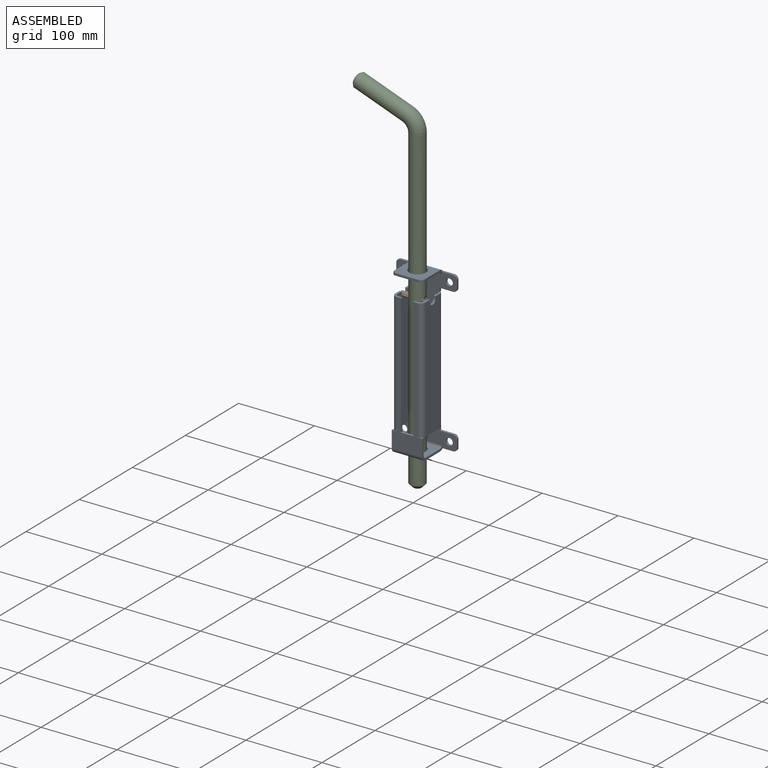
[diagram: assembled view]
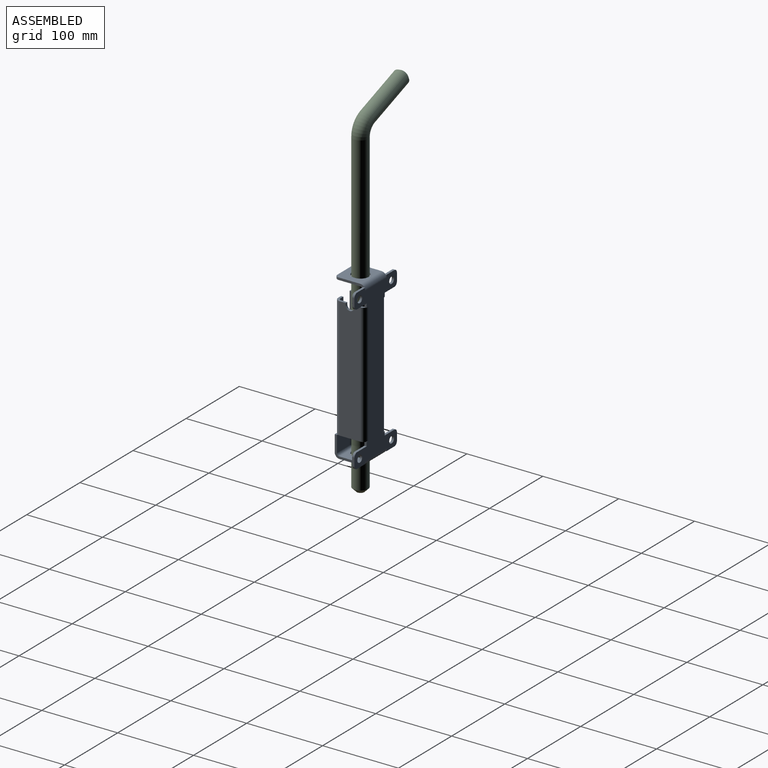
[diagram: assembled view, second angle]
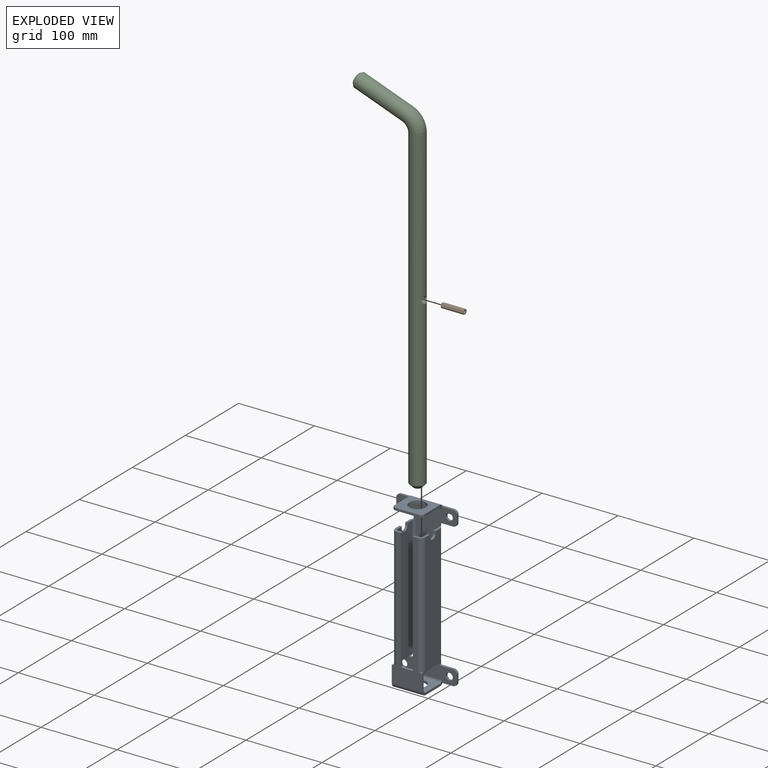
[diagram: exploded view]
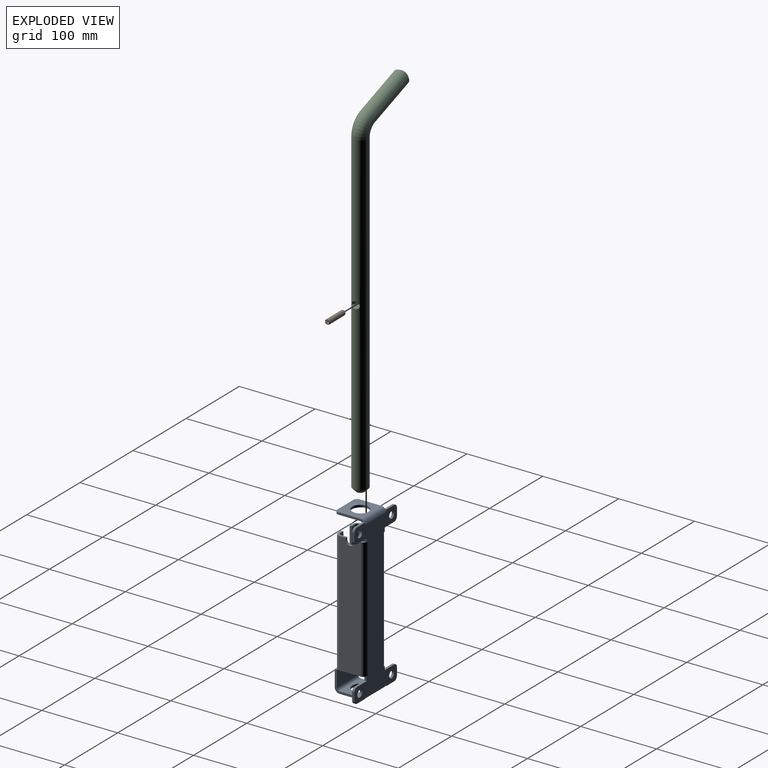
[diagram: exploded view, second angle]
ASSEMBLY  parts=3 mates=2
PART A: 118 faces, bbox 80.1x40.1x216.1 mm
  f0: plane 3.4x0.98mm, normal (0,0,-1), area 1.1mm2, adj f22,f28,f116
  f1: plane 3.4x0.98mm, normal (0,0,-1), area 1.1mm2, adj f15,f28,f94
  f2: plane 3.4x0.98mm, normal (-1,0,0), area 1.1mm2, adj f10,f28,f72
  f3: plane 3.4x0.98mm, normal (-1,0,0), area 1.1mm2, adj f19,f28,f48
  f4: plane 3.4x0.98mm, normal (0,0,1), area 1.1mm2, adj f14,f28,f94
  f5: plane 3.4x0.98mm, normal (0,0,1), area 1.1mm2, adj f27,f28,f116
  f6: plane 3.4x0.98mm, normal (1,0,0), area 1.1mm2, adj f18,f28,f48
  f7: plane 3.4x0.98mm, normal (1,0,0), area 1.1mm2, adj f11,f28,f72
  f8: plane 18x3mm, normal (0,0,1), area 54mm2, adj f27,f28,f29,f37
  f9: plane 10x3mm, normal (1,0,0), area 30mm2, adj f28,f29,f34,f37
  f10: plane 15x3mm, normal (0,0,-1), area 45mm2, adj f2,f28,f29,f34,f50
  f11: plane 15x3mm, normal (0,0,-1), area 45mm2, adj f7,f28,f29,f30,f71
  f12: plane 10x3mm, normal (-1,0,0), area 30mm2, adj f28,f29,f30,f32
  f13: plane 18x3mm, normal (0,0,1), area 54mm2, adj f14,f28,f29,f32
  f14: plane 5x3mm, normal (-1,0,0), area 15mm2, adj f4,f13,f28,f29,f74
  f15: plane 5x3mm, normal (-1,0,0), area 15mm2, adj f1,f16,f28,f29,f93
  f16: plane 18x3mm, normal (0,0,-1), area 54mm2, adj f15,f28,f29,f31
  f17: plane 10x3mm, normal (-1,0,0), area 30mm2, adj f28,f29,f31,f35
  f18: plane 15x3mm, normal (0,0,1), area 45mm2, adj f6,f28,f29,f35,f38
  f19: plane 15x3mm, normal (0,0,1), area 45mm2, adj f3,f28,f29,f36,f47
  f20: plane 10x3mm, normal (1,0,0), area 30mm2, adj f28,f29,f33,f36
  f21: plane 18x3mm, normal (0,0,-1), area 54mm2, adj f22,f28,f29,f33
  f22: plane 5x3mm, normal (1,0,0), area 15mm2, adj f0,f21,f28,f29,f96
  f23: cylinder r=4.5mm len=9mm, axis (0,-1,0), area 84.8mm2, adj f28,f29
  f24: cylinder r=4.5mm len=9mm, axis (0,-1,0), area 84.8mm2, adj f28,f29
  f25: cylinder r=4.5mm len=9mm, axis (0,-1,0), area 84.8mm2, adj f28,f29
  f26: cylinder r=4.5mm len=9mm, axis (0,-1,0), area 84.8mm2, adj f28,f29
  f27: plane 5x3mm, normal (1,0,0), area 15mm2, adj f5,f8,f28,f29,f115
  f28: plane 210x80mm, normal (0,1,0), area 7322.6mm2, adj f0,f1,f2,f3,f4,f5,f6,f7
  f29: plane 210x80mm, normal (0,-1,0), area 7322.6mm2, adj f8,f9,f10,f11,f12,f13,f14,f15
  f30: cylinder r=5mm len=5mm, axis (0,1,0), area 23.6mm2, adj f11,f12,f28,f29
  f31: cylinder r=5mm len=5mm, axis (0,1,0), area 23.6mm2, adj f16,f17,f28,f29
  f32: cylinder r=5mm len=5mm, axis (0,1,0), area 23.6mm2, adj f12,f13,f28,f29
  f33: cylinder r=5mm len=5mm, axis (0,1,0), area 23.6mm2, adj f20,f21,f28,f29
  f34: cylinder r=5mm len=5mm, axis (0,-1,0), area 23.6mm2, adj f9,f10,f28,f29
  f35: cylinder r=5mm len=5mm, axis (0,1,0), area 23.6mm2, adj f17,f18,f28,f29
  f36: cylinder r=5mm len=5mm, axis (0,-1,0), area 23.6mm2, adj f19,f20,f28,f29
  f37: cylinder r=5mm len=5mm, axis (0,1,0), area 23.6mm2, adj f8,f9,f28,f29
  f38: plane 6.4x5.42mm, normal (-1,0,0), area 14mm2, adj f18,f29,f42,f48,f49
  f39: plane 30x3mm, normal (0,-1,0), area 90mm2, adj f43,f44,f45,f46
  f40: plane 28.6x3mm, normal (1,0,0), area 85.8mm2, adj f43,f44,f46,f47
  f41: cylinder r=11mm len=22mm, axis (0,0,1), area 207.3mm2, adj f43,f44
  f42: plane 28.6x3mm, normal (-1,0,0), area 85.8mm2, adj f38,f43,f44,f45
  f43: plane 40x33.6mm, normal (0,0,1), area 953.1mm2, adj f39,f40,f41,f42,f45,f46,f48
  f44: plane 40x33.6mm, normal (0,0,-1), area 953.1mm2, adj f39,f40,f41,f42,f45,f46,f49
  f45: cylinder r=5mm len=5mm, axis (0,0,-1), area 23.6mm2, adj f39,f42,f43,f44
  f46: cylinder r=5mm len=5mm, axis (0,0,-1), area 23.6mm2, adj f39,f40,f43,f44
  f47: plane 6.4x5.42mm, normal (1,0,0), area 14mm2, adj f19,f29,f40,f48,f49
  f48: cylinder r=6.4mm len=40mm, axis (1,0,0), area 402.1mm2, adj f3,f6,f28,f38,f43,f47
  f49: cylinder r=3.4mm len=40mm, axis (1,0,0), area 213.6mm2, adj f29,f38,f44,f47
  f50: plane 6.4x5.42mm, normal (1,0,0), area 14mm2, adj f10,f29,f53,f72,f73
  f51: plane 27.2x3mm, normal (-1,0,0), area 81.6mm2, adj f54,f55,f67,f71
  f52: cylinder r=11mm len=22mm, axis (0,0,-1), area 207.3mm2, adj f54,f55
  f53: plane 27.2x3mm, normal (1,0,0), area 81.6mm2, adj f50,f54,f55,f68
  f54: plane 40x27.2mm, normal (0,0,-1), area 707.9mm2, adj f51,f52,f53,f69,f72
  f55: plane 40x27.2mm, normal (0,0,1), area 707.9mm2, adj f51,f52,f53,f70,f73
  f56: plane 3x0.05mm, normal (-1,0,0), area 0.2mm2, adj f60,f61,f65,f66
  f57: plane 3x0.05mm, normal (1,0,0), area 0.2mm2, adj f59,f60,f65,f66
  f58: offset ~3.1x3.1mm, area 9mm2, adj f59,f64,f65,f66
  f59: offset ~9.1x3.1mm, area 27mm2, adj f57,f58,f65,f66
  f60: bspline ~16x3mm, area 48mm2, adj f56,f57,f65,f66
  f61: offset ~9.1x3.1mm, area 27mm2, adj f56,f62,f65,f66
  f62: offset ~3.1x3.1mm, area 9mm2, adj f61,f63,f65,f66
  f63: plane 21.54x3mm, normal (-1,0,0), area 64.6mm2, adj f62,f65,f66,f67
  f64: plane 21.54x3mm, normal (1,0,0), area 64.6mm2, adj f58,f65,f66,f68
  f65: plane 40x21.59mm, normal (0,-1,0), area 862.4mm2, adj f56,f57,f58,f59,f60,f61,f62,f63
  f66: plane 40x21.59mm, normal (0,1,0), area 862.4mm2, adj f56,f57,f58,f59,f60,f61,f62,f63
  f67: plane 6.4x6.4mm, normal (-1,0,0), area 23.1mm2, adj f51,f63,f69,f70
  f68: plane 6.4x6.4mm, normal (1,0,0), area 23.1mm2, adj f53,f64,f69,f70
  f69: cylinder r=6.4mm len=40mm, axis (-1,0,0), area 402.1mm2, adj f54,f65,f67,f68
  f70: cylinder r=3.4mm len=40mm, axis (-1,0,0), area 213.6mm2, adj f55,f66,f67,f68
  f71: plane 6.4x5.42mm, normal (-1,0,0), area 14mm2, adj f11,f29,f51,f72,f73
  f72: cylinder r=6.4mm len=40mm, axis (1,0,0), area 402.1mm2, adj f2,f7,f28,f50,f54,f71
  f73: cylinder r=3.4mm len=40mm, axis (1,0,0), area 213.6mm2, adj f29,f50,f55,f71
  f74: plane 6.4x5.42mm, normal (0,0,-1), area 14mm2, adj f14,f29,f79,f94,f95
  f75: plane 3x0.05mm, normal (0,-1,0), area 0.1mm2, adj f79,f82,f83,f90
  f76: cylinder r=5.5mm len=11mm, axis (-1,0,0), area 51.8mm2, adj f77,f81,f82,f83
  f77: plane 3x2.5mm, normal (0,-1,0), area 7.5mm2, adj f76,f78,f82,f83
  f78: plane 8.1x3mm, normal (0,0,1), area 24.3mm2, adj f77,f82,f83,f93
  f79: plane 27.2x3mm, normal (0,0,-1), area 81.6mm2, adj f74,f75,f82,f83
  f80: plane 8.1x3mm, normal (0,0,1), area 24.3mm2, adj f81,f82,f83,f89
  f81: plane 3x2.5mm, normal (0,1,0), area 7.5mm2, adj f76,f80,f82,f83
  f82: plane 160x27.2mm, normal (-1,0,0), area 4277mm2, adj f75,f76,f77,f78,f79,f80,f81,f91
  f83: plane 160x27.2mm, normal (1,0,0), area 4277mm2, adj f75,f76,f77,f78,f79,f80,f81,f92
  f84: plane 159.95x3mm, normal (1,0,0), area 479.8mm2, adj f85,f86,f87,f88
  f85: plane 5.6x3mm, normal (0,0,1), area 16.8mm2, adj f84,f87,f88,f89
  f86: offset ~9.1x3.1mm, area 16.8mm2, adj f84,f87,f88,f90
  f87: plane 159.95x5.6mm, normal (0,-1,0), area 895.7mm2, adj f84,f85,f86,f91
  f88: plane 159.95x5.6mm, normal (0,1,0), area 895.7mm2, adj f84,f85,f86,f92
  f89: plane 6.4x6.4mm, normal (0,0,1), area 23.1mm2, adj f80,f85,f91,f92
  f90: plane 6.4x6.4mm, normal (0,0,-1), area 23.1mm2, adj f75,f86,f91,f92
  f91: cylinder r=6.4mm len=159.95mm, axis (0,0,1), area 1608mm2, adj f82,f87,f89,f90
  f92: cylinder r=3.4mm len=159.95mm, axis (0,0,1), area 854.2mm2, adj f83,f88,f89,f90
  f93: plane 6.4x5.42mm, normal (0,0,1), area 14mm2, adj f15,f29,f78,f94,f95
  f94: cylinder r=6.4mm len=160mm, axis (0,0,1), area 1608.5mm2, adj f1,f4,f28,f74,f82,f93
  f95: cylinder r=3.4mm len=160mm, axis (0,0,1), area 854.5mm2, adj f29,f74,f83,f93
  f96: plane 6.4x5.42mm, normal (0,0,1), area 14mm2, adj f22,f29,f102,f116,f117
  f97: cylinder r=5.5mm len=11mm, axis (1,0,0), area 51.8mm2, adj f98,f103,f104,f105
  f98: plane 3x2.5mm, normal (0,1,0), area 7.5mm2, adj f97,f99,f104,f105
  f99: plane 8.1x3mm, normal (0,0,1), area 24.3mm2, adj f98,f104,f105,f112
  f100: plane 3x0.05mm, normal (0,-1,0), area 0.1mm2, adj f101,f104,f105,f111
  f101: plane 27.2x3mm, normal (0,0,-1), area 81.6mm2, adj f100,f104,f105,f115
  f102: plane 8.1x3mm, normal (0,0,1), area 24.3mm2, adj f96,f103,f104,f105
  f103: plane 3x2.5mm, normal (0,-1,0), area 7.5mm2, adj f97,f102,f104,f105
  f104: plane 160x27.2mm, normal (1,0,0), area 4277mm2, adj f97,f98,f99,f100,f101,f102,f103,f113
  f105: plane 160x27.2mm, normal (-1,0,0), area 4277mm2, adj f97,f98,f99,f100,f101,f102,f103,f114
  f106: plane 159.95x3mm, normal (-1,0,0), area 479.9mm2, adj f107,f108,f109,f110
  f107: offset ~9.1x3.1mm, area 16.8mm2, adj f106,f109,f110,f111
  f108: plane 5.6x3mm, normal (0,0,1), area 16.8mm2, adj f106,f109,f110,f112
  f109: plane 159.95x5.6mm, normal (0,-1,0), area 895.7mm2, adj f106,f107,f108,f113
  f110: plane 159.95x5.6mm, normal (0,1,0), area 895.7mm2, adj f106,f107,f108,f114
  f111: plane 6.4x6.4mm, normal (0,0,-1), area 23.1mm2, adj f100,f107,f113,f114
  f112: plane 6.4x6.4mm, normal (0,0,1), area 23.1mm2, adj f99,f108,f113,f114
  f113: cylinder r=6.4mm len=159.95mm, axis (0,0,-1), area 1608mm2, adj f104,f109,f111,f112
  f114: cylinder r=3.4mm len=159.95mm, axis (0,0,-1), area 854.2mm2, adj f105,f110,f111,f112
  f115: plane 6.4x5.42mm, normal (0,0,-1), area 14mm2, adj f27,f29,f101,f116,f117
  f116: cylinder r=6.4mm len=160mm, axis (0,0,1), area 1608.5mm2, adj f0,f5,f28,f96,f104,f115
  f117: cylinder r=3.4mm len=160mm, axis (0,0,1), area 854.5mm2, adj f29,f96,f105,f115
PART B: 8 faces, bbox 30x6.7x6.7 mm
  f0: plane 30x1.19mm, normal (0,-0.13,-0.99), area 35.6mm2, adj f1,f2,f3,f4,f5,f6
  f1: cylinder r=3.35mm len=27.6mm, axis (1,0,0), area 557.7mm2, adj f0,f2,f6,f7
  f2: cone r=3.19mm half-angle=15deg, axis (1,0,0), area 23.9mm2, adj f0,f1,f3,f7
  f3: plane 6.4x6.03mm, normal (-1,0,0), area 13.7mm2, adj f0,f2,f4,f7
  f4: cylinder r=2.15mm len=30mm, axis (1,0,0), area 389.1mm2, adj f0,f3,f5,f7
  f5: plane 6.4x6.03mm, normal (1,0,0), area 13.8mm2, adj f0,f4,f6,f7
  f6: cone r=3.19mm half-angle=15deg, axis (-1,0,0), area 23.9mm2, adj f0,f1,f5,f7
  f7: plane 30x1.19mm, normal (0,-0.13,0.99), area 35.6mm2, adj f1,f2,f3,f4,f5,f6
PART C: 10 faces, bbox 94.7x20x473.4 mm
  f0: cylinder r=10mm len=417mm, axis (0,0,1), area 26045.2mm2, adj f3,f6,f7,f8
  f1: plane 10x10mm, normal (0,0,-1), area 78.5mm2, adj f8
  f2: plane 14x13.16mm, normal (-0.94,0,0.34), area 153.9mm2, adj f9
  f3: torus R=20mm, axis (0,-1,0), area 1535.3mm2, adj f0,f4
  f4: cylinder r=10mm len=70.74mm, axis (-0.94,0,0.34), area 4272.3mm2, adj f3,f9
  f5: cylinder r=3mm len=17mm, axis (-1,0,0), area 320.4mm2, adj f6,f7
  f6: bspline ~10.58x8.99mm, area 60.7mm2, adj f0,f5
  f7: bspline ~10.59x9mm, area 60.7mm2, adj f0,f5
  f8: cone r=10mm half-angle=45deg, axis (0,0,1), area 333.2mm2, adj f0,f1
  f9: cone r=7mm half-angle=45deg, axis (0.94,0,-0.34), area 226.6mm2, adj f2,f4
PLACE A at identity fixed
PLACE B rot(axis=(0,0,1),0deg) t=(-21.4,-20,75)mm
PLACE C rot(axis=(0,0,1),0deg) t=(0,-20,-150)mm
MATE fastened B.f1 <-> C.f5  axis (1,0,0) through (8.6,-20,75)mm
MATE cylindrical C.f0 <-> A.f41  axis (0,0,-1) through (0,-20,-150)mm
